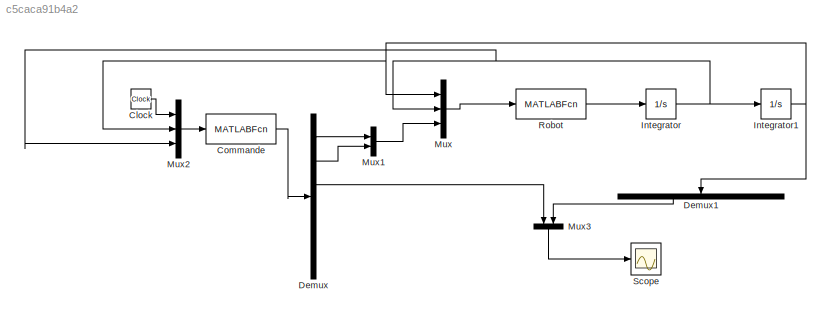
MODEL slx_c5caca91b4a2
KIND model
BLOCK [Clock] Clock
BLOCK [MATLABFcn] Commande
  MATLABFcn = commande
  OutputDimensions = 6
  Ports = [1, 1]
BLOCK [Demux] Demux
  DisplayOption = bar
  Outputs = 6
  Ports = [1, 6]
BLOCK [Demux] Demux1
  DisplayOption = bar
  Outputs = 2
  Ports = [1, 2]
BLOCK [Integrator] Integrator
  Ports = [1, 1]
BLOCK [Integrator] Integrator1
  Ports = [1, 1]
BLOCK [Mux] Mux
  DisplayOption = bar
  Inputs = 3
  Ports = [3, 1]
BLOCK [Mux] Mux1
  DisplayOption = bar
  Inputs = 2
  Ports = [2, 1]
BLOCK [Mux] Mux2
  DisplayOption = bar
  Inputs = 3
  Ports = [3, 1]
BLOCK [Mux] Mux3
  DisplayOption = bar
  Inputs = 2
  Ports = [2, 1]
BLOCK [MATLABFcn] Robot
  MATLABFcn = robot
  OutputDimensions = 2
  Ports = [1, 1]
BLOCK [Scope] Scope
  DataFormat = StructureWithTime
  Floating = off
  NumInputPorts = 1
  Ports = [1]
  SampleTime = 0
  ShowLegends = off
LINE Clock:1 -> Mux2:1
LINE Commande:1 -> Demux:1
LINE Demux1:1 -> Mux3:2
LINE Demux:1 -> Mux1:1
LINE Demux:2 -> Mux1:2
LINE Demux:3 -> Mux3:1
NET Integrator1:1 -> Demux1:1, Mux2:2, Mux:1
NET Integrator:1 -> Integrator1:1, Mux2:3, Mux:2
LINE Mux1:1 -> Mux:3
LINE Mux2:1 -> Commande:1
LINE Mux3:1 -> Scope:1
LINE Mux:1 -> Robot:1
LINE Robot:1 -> Integrator:1
note: NET lines group one-source signal fan-out (src -> all destinations, sorted); 1:1 wires keep LINE
